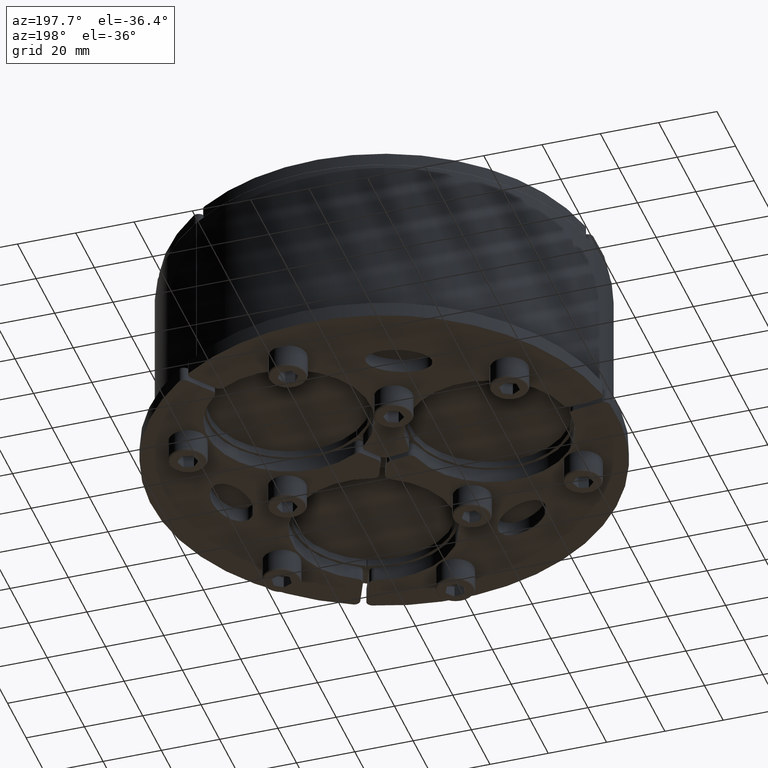
[diagram: clean part render]
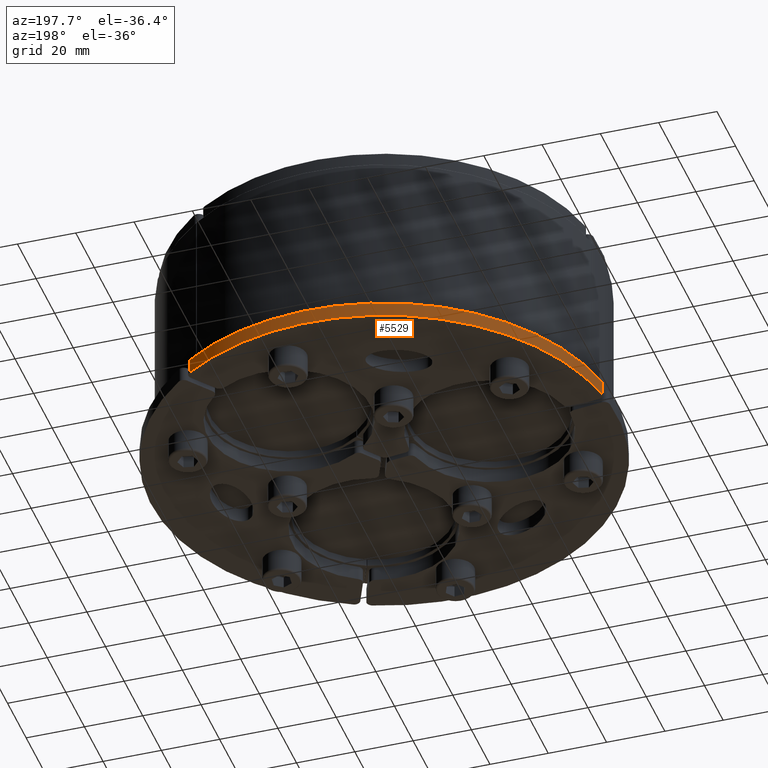
[diagram: same view with one face highlighted and labeled with its STEP entity id]
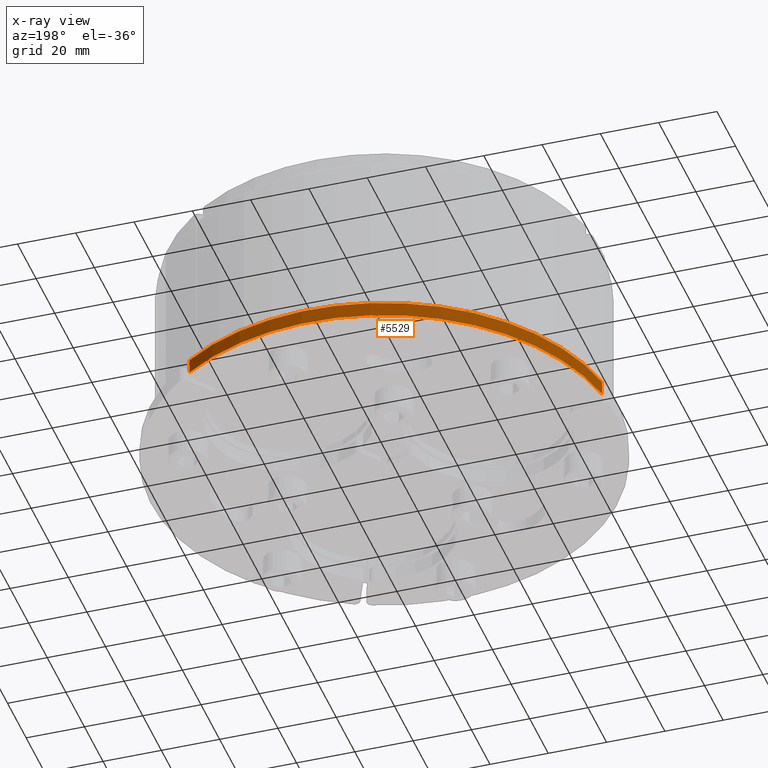
[diagram: x-ray of the same camera — body ghosted, the highlighted face saturated]
A machine part, auxiliary view. The second image highlights one B-rep face of the part: STEP entity #5529.
The next image is the same camera in x-ray: the body ghosted, the highlighted face saturated — about 0% of this face is hidden behind the body in this view.
In plain terms, the highlighted cylindrical surface (partial cylindrical patch) has radius 80 mm, axis along (-0, -0, -1).
Its self-contained STEP definition (entity closure, byte-faithful):
#5075=CARTESIAN_POINT('',(37.305709701483337,70.769230769230887,5.0));
#5076=VERTEX_POINT('',#5075);
#5094=CARTESIAN_POINT('',(37.305709701483337,70.769230769230887,0.0));
#5095=VERTEX_POINT('',#5094);
#5103=CARTESIAN_POINT('',(37.305709701483337,70.769230769230887,0.0));
#5104=DIRECTION('',(0.0,0.0,1.0));
#5105=VECTOR('',#5104,5.0);
#5106=LINE('',#5103,#5105);
#5107=EDGE_CURVE('',#5095,#5076,#5106,.T.);
#5213=CARTESIAN_POINT('',(-79.940806503178976,3.076923076923021,0.0));
#5214=VERTEX_POINT('',#5213);
#5222=CARTESIAN_POINT('',(0.0,0.0,0.0));
#5223=DIRECTION('',(0.0,0.0,-1.0));
#5224=DIRECTION('',(-0.489135618426694,-0.872207742906663,0.0));
#5225=AXIS2_PLACEMENT_3D('',#5222,#5223,#5224);
#5226=CIRCLE('',#5225,80.000000000000014);
#5227=EDGE_CURVE('',#5214,#5095,#5226,.T.);
#5487=CARTESIAN_POINT('',(-79.940806503178976,3.076923076923021,5.0));
#5488=VERTEX_POINT('',#5487);
#5496=CARTESIAN_POINT('',(-79.940806503178962,3.07692307692302,5.0));
#5497=DIRECTION('',(0.0,0.0,-1.0));
#5498=VECTOR('',#5497,5.0);
#5499=LINE('',#5496,#5498);
#5500=EDGE_CURVE('',#5488,#5214,#5499,.T.);
#5512=CARTESIAN_POINT('',(0.0,0.0,0.0));
#5513=DIRECTION('',(0.0,0.0,1.0));
#5514=DIRECTION('',(-0.489135618426694,-0.872207742906663,0.0));
#5515=AXIS2_PLACEMENT_3D('',#5512,#5513,#5514);
#5516=CYLINDRICAL_SURFACE('',#5515,80.000000000000028);
#5517=ORIENTED_EDGE('',*,*,#5107,.F.);
#5518=ORIENTED_EDGE('',*,*,#5227,.F.);
#5519=ORIENTED_EDGE('',*,*,#5500,.F.);
#5520=CARTESIAN_POINT('',(0.0,0.0,5.0));
#5521=DIRECTION('',(0.0,0.0,-1.0));
#5522=DIRECTION('',(-0.489135618426694,-0.872207742906663,0.0));
#5523=AXIS2_PLACEMENT_3D('',#5520,#5521,#5522);
#5524=CIRCLE('',#5523,80.000000000000014);
#5525=EDGE_CURVE('',#5488,#5076,#5524,.T.);
#5526=ORIENTED_EDGE('',*,*,#5525,.T.);
#5527=EDGE_LOOP('',(#5517,#5518,#5519,#5526));
#5528=FACE_OUTER_BOUND('',#5527,.T.);
#5529=ADVANCED_FACE('',(#5528),#5516,.T.);